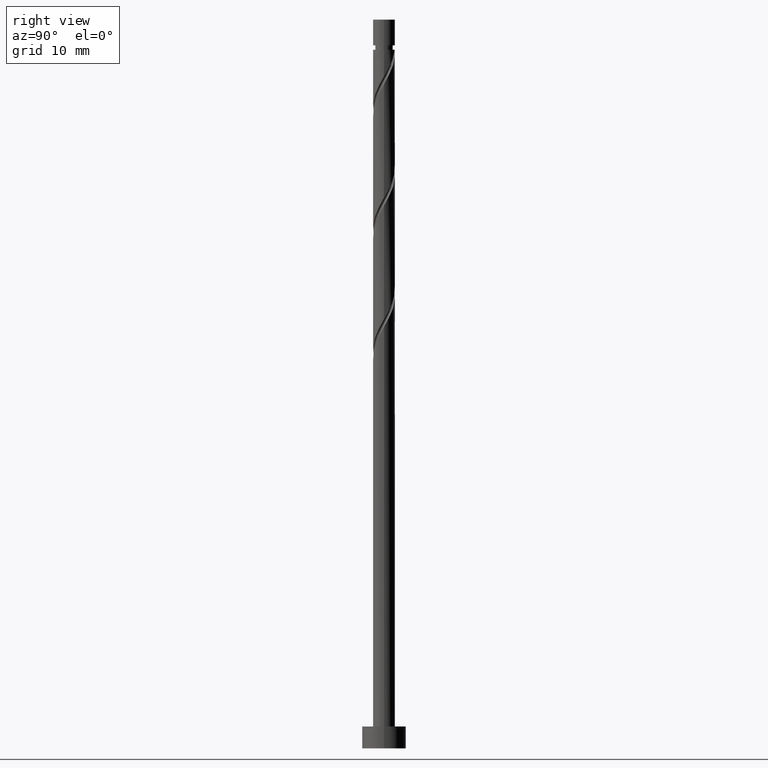
[diagram: clean part render]
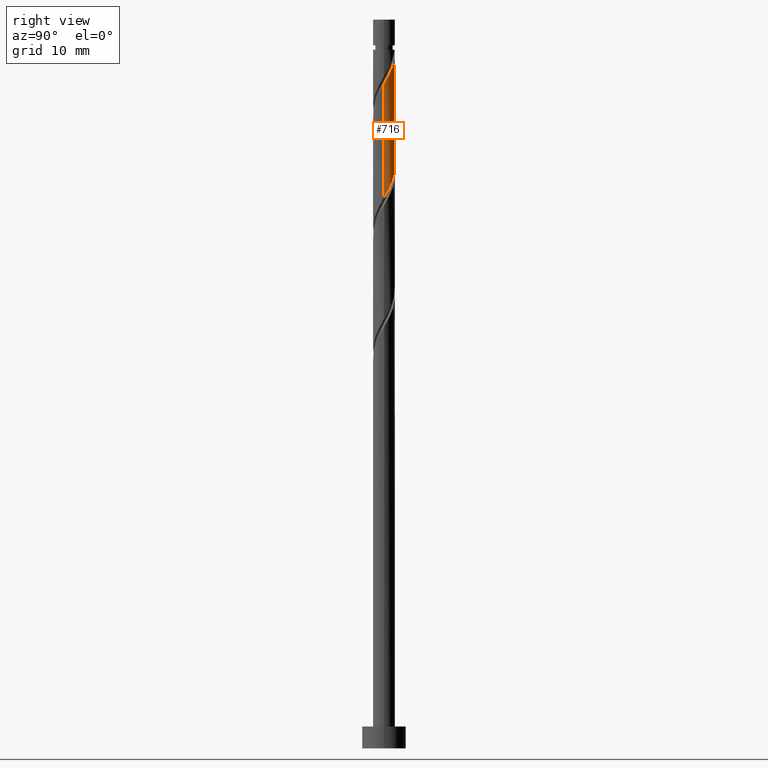
[diagram: same view with one face highlighted and labeled with its STEP entity id]
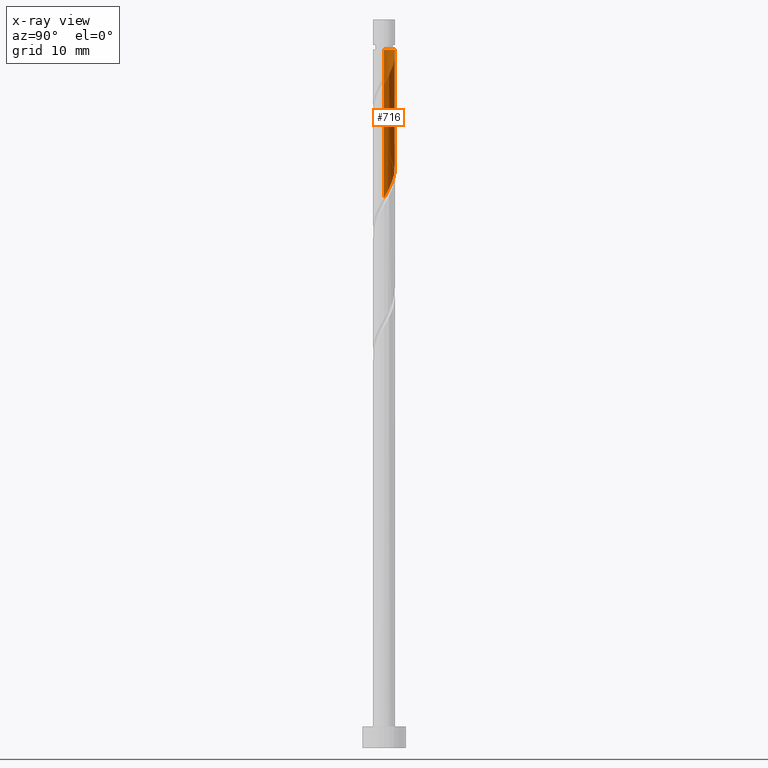
[diagram: x-ray of the same camera — body ghosted, the highlighted face saturated]
A machine part, right view. The second image highlights one B-rep face of the part: STEP entity #716.
The next image is the same camera in x-ray: the body ghosted, the highlighted face saturated — about 0% of this face is hidden behind the body in this view.
In plain terms, the highlighted cylindrical surface (edge-blend (fillet) strip) has radius 1.5 mm, axis along (-0, -0, -1).
Its self-contained STEP definition (entity closure, byte-faithful):
#13 = VERTEX_POINT ( 'NONE', #1219 ) ;
#28 = VERTEX_POINT ( 'NONE', #519 ) ;
#34 = CARTESIAN_POINT ( 'NONE',  ( 1.338286590721356806, 0.7272855081591930171, 76.87592177575506014 ) ) ;
#40 = CARTESIAN_POINT ( 'NONE',  ( 0.000000000000000000, 0.000000000000000000, 95.85740325723654109 ) ) ;
#55 = CIRCLE ( 'NONE', #1323, 1.500000000000000666 ) ;
#81 = CARTESIAN_POINT ( 'NONE',  ( -1.500000000000000222, 1.793049459790926770E-14, 83.88825814555860916 ) ) ;
#83 = EDGE_CURVE ( 'NONE', #756, #946, #1334, .T. ) ;
#102 = CARTESIAN_POINT ( 'NONE',  ( 0.03929556949054253956, 1.522632939188359069, 79.65369955353284581 ) ) ;
#115 = LINE ( 'NONE', #1222, #690 ) ;
#141 = CARTESIAN_POINT ( 'NONE',  ( 1.499999999999998668, 0.2445815577306881261, 75.98484432459095217 ) ) ;
#142 = CARTESIAN_POINT ( 'NONE',  ( -0.2984962311319953043, 1.470000000000001750, 95.85740325723658373 ) ) ;
#176 = CARTESIAN_POINT ( 'NONE',  ( -1.499999999999999778, 0.01935251149803960541, 83.85424077162626588 ) ) ;
#264 = LINE ( 'NONE', #630, #1043 ) ;
#265 = CARTESIAN_POINT ( 'NONE',  ( -0.4838453794137441144, 1.444246813430079435, 80.57962547945876963 ) ) ;
#274 = DIRECTION ( 'NONE',  ( -0.000000000000000000, -0.000000000000000000, -1.000000000000000000 ) ) ;
#328 = CARTESIAN_POINT ( 'NONE',  ( 0.9486274347634513493, 1.191663207159258331, 93.54258844242171733 ) ) ;
#361 = EDGE_CURVE ( 'NONE', #13, #756, #115, .T. ) ;
#391 = DIRECTION ( 'NONE',  ( -0.000000000000000000, -0.000000000000000000, -1.000000000000000000 ) ) ;
#410 = CARTESIAN_POINT ( 'NONE',  ( -1.123809227997131899, 0.9935053190942115808, 81.96851436834766957 ) ) ;
#475 = ORIENTED_EDGE ( 'NONE', *, *, #361, .F. ) ;
#480 = CARTESIAN_POINT ( 'NONE',  ( 1.422305459129118432, 0.4764946809057890031, 76.41295881279211244 ) ) ;
#507 = DIRECTION ( 'NONE',  ( -1.000000000000000000, 0.000000000000000000, 0.000000000000000000 ) ) ;
#517 = CARTESIAN_POINT ( 'NONE',  ( 1.500000000000002220, 8.440516098994939783E-16, 91.15988170224781584 ) ) ;
#519 = CARTESIAN_POINT ( 'NONE',  ( 1.500000000000002442, 8.440516098994939783E-16, 91.15988170224781584 ) ) ;
#573 = CARTESIAN_POINT ( 'NONE',  ( 1.173559165389829406, 0.9342156524751273894, 77.33888473871803626 ) ) ;
#584 = CARTESIAN_POINT ( 'NONE',  ( 1.500000000000000000, 9.710328255480970146E-17, 75.55492481222532319 ) ) ;
#587 = FACE_OUTER_BOUND ( 'NONE', #975, .T. ) ;
#614 = ORIENTED_EDGE ( 'NONE', *, *, #1434, .F. ) ;
#630 = CARTESIAN_POINT ( 'NONE',  ( 1.500000000000000222, 1.836970198721029934E-16, 100.0000000000000000 ) ) ;
#631 = CARTESIAN_POINT ( 'NONE',  ( -1.395834070351430256, 0.5492242238340916405, 82.89444029427356497 ) ) ;
#665 = AXIS2_PLACEMENT_3D ( 'NONE', #725, #391, #852 ) ;
#690 = VECTOR ( 'NONE', #987, 1000.000000000000000 ) ;
#691 = EDGE_CURVE ( 'NONE', #13, #991, #55, .T. ) ;
#716 = ADVANCED_FACE ( 'NONE', ( #587 ), #1416, .T. ) ;
#725 = CARTESIAN_POINT ( 'NONE',  ( 0.000000000000000000, 0.000000000000000000, 100.0000000000000000 ) ) ;
#749 = CARTESIAN_POINT ( 'NONE',  ( -1.499500723504462174, 0.03869858149331632108, 83.82036622019950300 ) ) ;
#756 = VERTEX_POINT ( 'NONE', #833 ) ;
#821 = CARTESIAN_POINT ( 'NONE',  ( 0.2984962311319865336, 1.470000000000000417, 79.19073659056989811 ) ) ;
#825 = DIRECTION ( 'NONE',  ( -0.000000000000000000, -0.000000000000000000, -1.000000000000000000 ) ) ;
#833 = CARTESIAN_POINT ( 'NONE',  ( -1.500000000000000222, 1.793049459790926770E-14, 83.88825814555860916 ) ) ;
#838 = ORIENTED_EDGE ( 'NONE', *, *, #83, .F. ) ;
#842 = CARTESIAN_POINT ( 'NONE',  ( -0.7162364070885967049, 1.317955010294668217, 81.04258844242173154 ) ) ;
#849 = CARTESIAN_POINT ( 'NONE',  ( 1.500000000000001998, 0.01935251149804131932, 91.19389907618015911 ) ) ;
#852 = DIRECTION ( 'NONE',  ( -1.000000000000000000, 0.000000000000000000, 0.000000000000000000 ) ) ;
#862 = CARTESIAN_POINT ( 'NONE',  ( -0.2984962311319953043, 1.470000000000001750, 95.85740325723659794 ) ) ;
#870 = CARTESIAN_POINT ( 'NONE',  ( 0.2222749049616024597, 1.483439876309220917, 94.93147733131061727 ) ) ;
#871 = CARTESIAN_POINT ( 'NONE',  ( -0.9486274347634494619, 1.191663207159257221, 81.50555140538469345 ) ) ;
#917 =( BOUNDED_CURVE ( )  B_SPLINE_CURVE ( 2, ( #517, #849, #1306, #1203, #1432, #1089, #1445, #328, #1145, #1441, #870, #1204, #862 ),
 .UNSPECIFIED., .F., .T. ) 
 B_SPLINE_CURVE_WITH_KNOTS ( ( 3, 2, 2, 2, 2, 2, 3 ),
 ( 0.6795248053855296178, 0.6805555555555555802, 0.6944444444444444198, 0.7083333333333332593, 0.7222222222222222099, 0.7361111111111111605, 0.7500000000000000000 ),
 .UNSPECIFIED. ) 
 CURVE ( )  GEOMETRIC_REPRESENTATION_ITEM ( )  RATIONAL_B_SPLINE_CURVE ( ( 0.9071930855141270289, 0.9080659294509743074, 0.9090909090909138346, 0.8952797754656482976, 0.9090909090909138346, 0.8952797754656482976, 0.9090909090909138346, 0.8952797754656482976, 0.9090909090909138346, 0.8952797754656482976, 0.9090909090909138346, 0.8952797754656482976, 0.9090909090909138346 ) ) 
 REPRESENTATION_ITEM ( '' )  );
#936 = CARTESIAN_POINT ( 'NONE',  ( 1.008831740058301785, 1.141145796791061429, 77.80184770168096975 ) ) ;
#946 = VERTEX_POINT ( 'NONE', #584 ) ;
#973 = CARTESIAN_POINT ( 'NONE',  ( -1.492677119472045844, 0.3031010166390170069, 83.35740325723654109 ) ) ;
#975 = EDGE_LOOP ( 'NONE', ( #614, #1421, #838, #475, #1107 ) ) ;
#987 = DIRECTION ( 'NONE',  ( -0.000000000000000000, -0.000000000000000000, -1.000000000000000000 ) ) ;
#990 = CARTESIAN_POINT ( 'NONE',  ( -1.298991021230814225, 0.7953474310291664962, 82.43147733131061727 ) ) ;
#991 = VERTEX_POINT ( 'NONE', #142 ) ;
#1040 = CARTESIAN_POINT ( 'NONE',  ( 1.500000000000000000, 9.710328255480970146E-17, 75.55492481222532319 ) ) ;
#1043 = VECTOR ( 'NONE', #274, 1000.000000000000000 ) ;
#1089 = CARTESIAN_POINT ( 'NONE',  ( 1.298991021230816889, 0.7953474310291662741, 92.61666251649582193 ) ) ;
#1107 = ORIENTED_EDGE ( 'NONE', *, *, #691, .T. ) ;
#1145 = CARTESIAN_POINT ( 'NONE',  ( 0.7162364070885985923, 1.317955010294669549, 94.00555140538467924 ) ) ;
#1203 = CARTESIAN_POINT ( 'NONE',  ( 1.492677119472048064, 0.3031010166390168403, 91.69073659056986969 ) ) ;
#1204 = CARTESIAN_POINT ( 'NONE',  ( -0.03929556949054227588, 1.522632939188361734, 95.39444029427359339 ) ) ;
#1219 = CARTESIAN_POINT ( 'NONE',  ( -1.500000000000000666, 0.000000000000000000, 95.85740325723654109 ) ) ;
#1222 = CARTESIAN_POINT ( 'NONE',  ( -1.500000000000000222, 0.000000000000000000, 100.0000000000000000 ) ) ;
#1254 = CARTESIAN_POINT ( 'NONE',  ( -0.2222749049616008221, 1.483439876309219363, 80.11666251649579351 ) ) ;
#1280 = CARTESIAN_POINT ( 'NONE',  ( 0.5576968927734294867, 1.417367060811640878, 78.72777362760689357 ) ) ;
#1306 = CARTESIAN_POINT ( 'NONE',  ( 1.499500723504464617, 0.03869858149331611291, 91.22777362760693620 ) ) ;
#1323 = AXIS2_PLACEMENT_3D ( 'NONE', #40, #825, #507 ) ;
#1334 =( BOUNDED_CURVE ( )  B_SPLINE_CURVE ( 2, ( #81, #176, #749, #973, #631, #990, #410, #871, #842, #265, #1254, #102, #821, #1280, #1407, #936, #573, #34, #480, #141, #1040 ),
 .UNSPECIFIED., .F., .T. ) 
 B_SPLINE_CURVE_WITH_KNOTS ( ( 3, 2, 2, 2, 2, 2, 2, 2, 2, 2, 3 ),
 ( 0.4295248053855295067, 0.4305555555555555802, 0.4444444444444444198, 0.4583333333333333148, 0.4722222222222222099, 0.4861111111111111049, 0.5000000000000000000, 0.5138888888888888395, 0.5277777777777777901, 0.5416666666666666297, 0.5545248053855288406 ),
 .UNSPECIFIED. ) 
 CURVE ( )  GEOMETRIC_REPRESENTATION_ITEM ( )  RATIONAL_B_SPLINE_CURVE ( ( 0.9071930855141207006, 0.9080659294509680901, 0.9090909090909077284, 0.8952797754656424134, 0.9090909090909077284, 0.8952797754656424134, 0.9090909090909077284, 0.8952797754656424134, 0.9090909090909077284, 0.8952797754656424134, 0.9090909090909077284, 0.8952797754656424134, 0.9090909090909077284, 0.8952797754656424134, 0.9090909090909077284, 0.8952797754656424134, 0.9090909090909077284, 0.8952797754656424134, 0.9090909090909077284, 0.8963047551055827178, 0.9071930855141195904 ) ) 
 REPRESENTATION_ITEM ( '' )  );
#1407 = CARTESIAN_POINT ( 'NONE',  ( 0.7832643164158664684, 1.279256428801351264, 78.26481066464394587 ) ) ;
#1416 = CYLINDRICAL_SURFACE ( 'NONE', #665, 1.500000000000000222 ) ;
#1421 = ORIENTED_EDGE ( 'NONE', *, *, #1453, .T. ) ;
#1432 = CARTESIAN_POINT ( 'NONE',  ( 1.395834070351432699, 0.5492242238340917515, 92.15369955353286002 ) ) ;
#1434 = EDGE_CURVE ( 'NONE', #28, #991, #917, .T. ) ;
#1441 = CARTESIAN_POINT ( 'NONE',  ( 0.4838453794137458908, 1.444246813430081433, 94.46851436834765536 ) ) ;
#1445 = CARTESIAN_POINT ( 'NONE',  ( 1.123809227997133453, 0.9935053190942130241, 93.07962547945878384 ) ) ;
#1453 = EDGE_CURVE ( 'NONE', #28, #946, #264, .T. ) ;